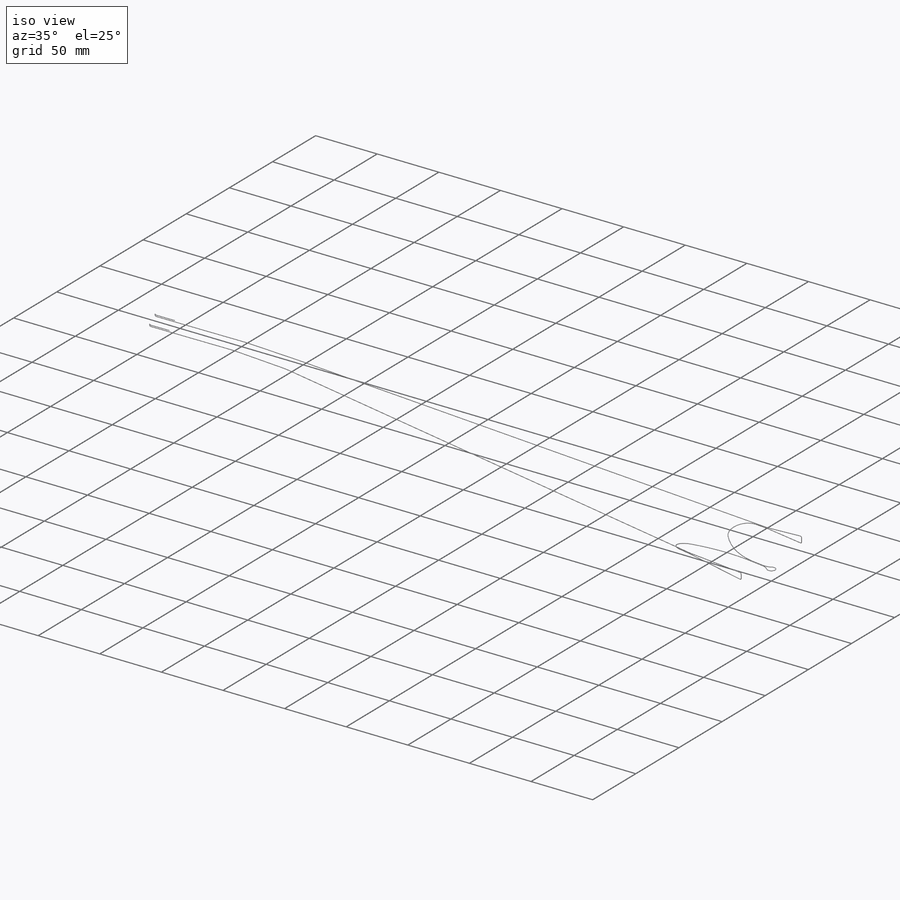
[diagram: iso view]
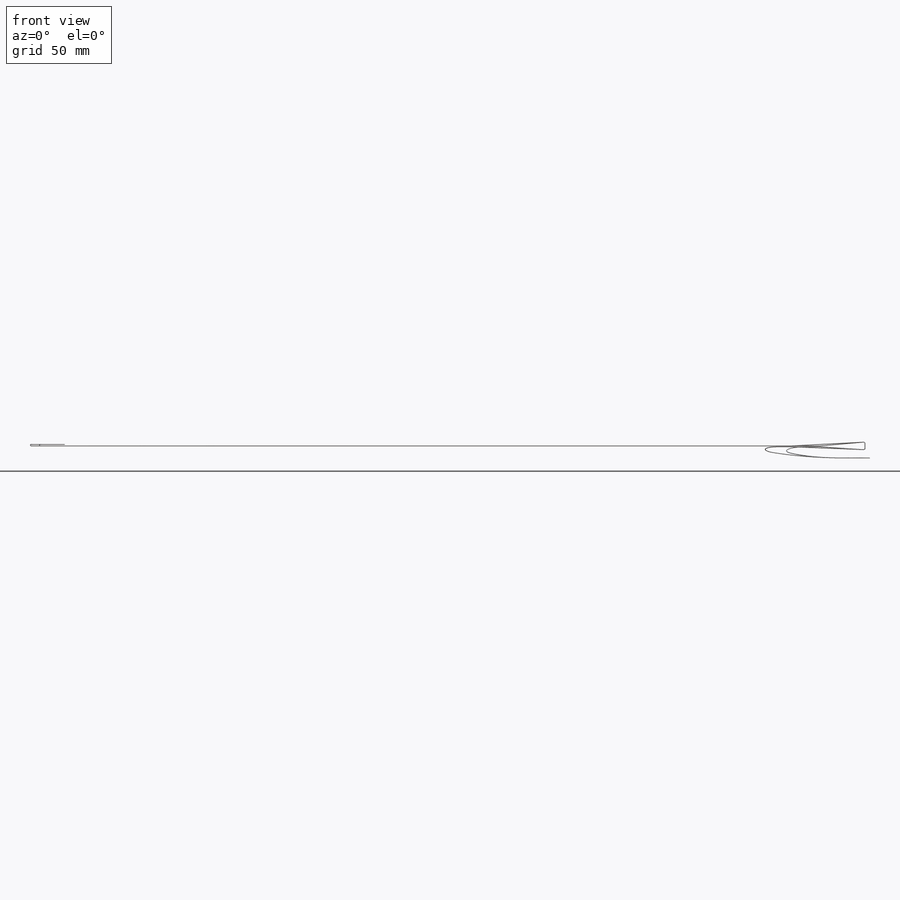
[diagram: front view]
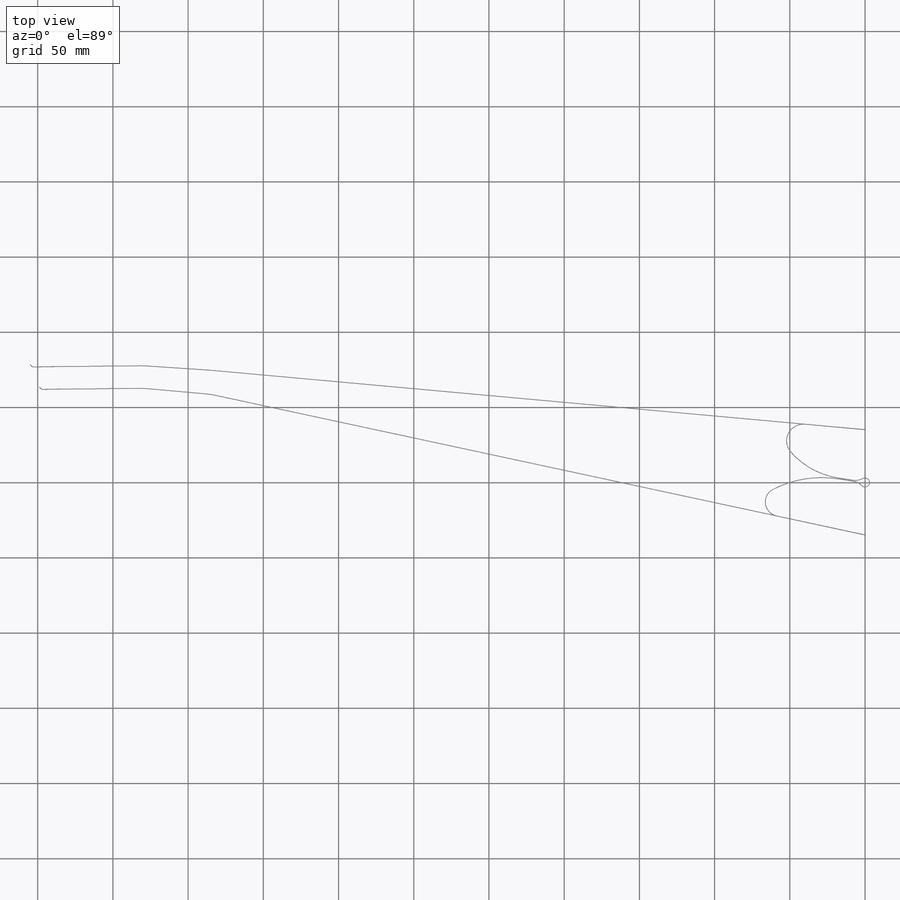
[diagram: top view]
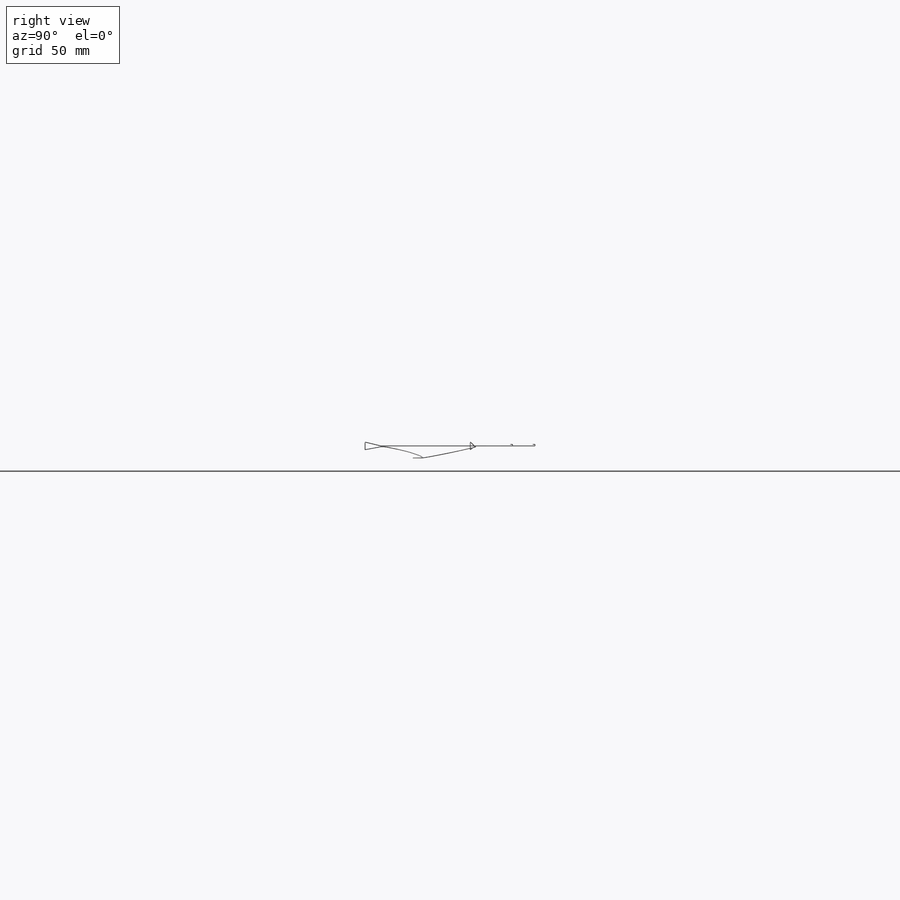
[diagram: right view]
SOLIDWORKS PART (.sldprt)
format: sldprt  version: not decoded by parser v0  size: 815,104 bytes
history: native  units: mm
features: sketch x32, plane x14, sweep x13, material x1 (+12 scaffold rows collapsed)
feature tree (72):
  scaffold x12  (default folders/planes/origin — collapsed)
  material  "Alloy Steel"
  sketch  "Sketch1"  dims[c1.D10=50.0mm c1.D1=70.0mm c1.D2=15.0mm c1.D3=45.0mm c1.D4=12.0mm c1.D5=~27.546436mm c2.D5=83.0deg c2.D6=16.0mm c2.D7=65.0mm c2.D8=480.0mm c2.D9=4.0mm c2.D10=~53.792021mm c3.D10=85.0deg c3.D11=75.0mm c3.D12=570.0mm c3.D13=25.0mm c3.D14=~239.88482mm c4.D13=85.0mm c4.D14=462.0mm c5.D13=113.0mm c5.D15=75.0mm c6.D15=~83.463366deg c7.D15=75.0mm c8.D15=~81.308283deg c8.D5=~438.277595mm c9.D5=89.0deg c9.D16=215.0mm c9.D17=100.0mm c10.D5=~439.538394mm c11.D5=~80.601767deg c11.D18=75.0mm c12.D18=90.0deg c12.D19=50.0mm c12.D20=145.0mm c12.D7=75.0mm c12.D5=3.0mm c12.D6=360.0mm]
  sketch  "Sketch2"  dims[c1.D1=15.0mm c1.D2=39.0mm c2.D1=50.0mm c2.D2=20.0mm c2.D3=30.0mm c2.D4=20.0mm]
  sketch  "Sketch3"  dims[D1=50.0mm]
  sketch  "Sketch31"  dims[D1=50.0mm]
  plane  "Plane14"
  sketch  "Sketch4"  dims[D1=10.0mm]
  plane  "Plane1"
  sketch  "Sketch5"  dims[D3=1.0mm D4=5.0mm D1=3.0mm D2=0.6mm D5=10.0mm]
  plane  "Plane2"
  sketch  "Sketch6"  dims[D1=10.0mm]
  plane  "Plane3"  Offset=8mm
  sketch  "Sketch7"  dims[c1.D1=10.0mm c1.D3=3.0mm c1.D2=0.6mm c1.D4=10.0mm c2.D4=~179.899802deg c3.D4=0.6mm]
  plane  "Plane4"
  sketch  "Sketch8"  dims[c1.D1=~35.06072mm c2.D1=30.0deg c3.D1=~21.530512mm c4.D1=60.0deg]
  plane  "Plane5"
  sketch  "Sketch9"  dims[c1.D1=~19.12963mm c2.D1=45.0deg]
  plane  "Plane6"
  sketch  "Sketch10"  dims[D1=0.5mm D2=10.0mm]
  plane  "Plane7"
  sketch  "Sketch11"
  plane  "Plane8"
  sketch  "Sketch12"
  sweep  "Sweep1"
  sketch  "Sketch13"  dims[D1=0.0mm]
  sweep  "Sweep2"
  sketch  "Sketch14"  dims[D1=0.0mm]
  sweep  "Sweep3"
  sweep  "Sweep4"
  sketch  "Sketch15"  dims[D1=0.0mm]
  sweep  "Sweep5"
  sketch  "Sketch16"  dims[D1=0.0mm]
  sweep  "Sweep6"
  sweep  "Sweep7"
  sketch  "Sketch17"  dims[c1.D1=1.0mm c1.D2=1.0mm c1.D3=20.0mm c2.D3=45.0deg]
  sketch  "Sketch18"
  plane  "Plane9"
  plane  "Plane10"
  sketch  "Sketch19"  dims[D1=1.0mm]
  sketch  "Sketch20"
  plane  "Plane11"
  sketch  "Sketch21"
  plane  "Plane12"
  sketch  "Sketch22"
  plane  "Plane13"
  sketch  "Sketch23"  dims[D1=15.0mm]
  sketch  "Sketch24"
  sketch  "Sketch25"  dims[D2=0.5mm D1=0.0mm]
  sweep  "Sweep8"
  sketch  "Sketch26"  dims[D1=0.0mm]
  sweep  "Sweep9"
  sketch  "Sketch27"  dims[D1=0.0mm]
  sweep  "Sweep10"
  sketch  "Sketch28"  dims[D2=0.5mm D1=0.0mm]
  sweep  "Sweep11"
  sketch  "Sketch29"  dims[D1=0.0mm]
  sweep  "Sweep12"
  sketch  "Sketch30"  dims[D1=0.0mm]
  sweep  "Sweep13"
  sketch  "Sketch32"  dims[D1=50.0mm]
decode coverage: 25 of 45 modeling features carry decoded parameters
note: ~ marks probable driven/reference dimensions
summary: profile_refs inferred from adjacent sketches, not decoded
note: suppression state not decoded; provenance and decode notes live in map.json
